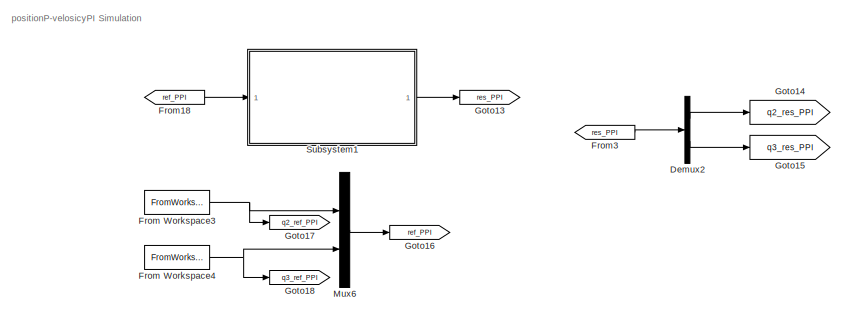
[diagram: root canvas - part 1/4, top left region]
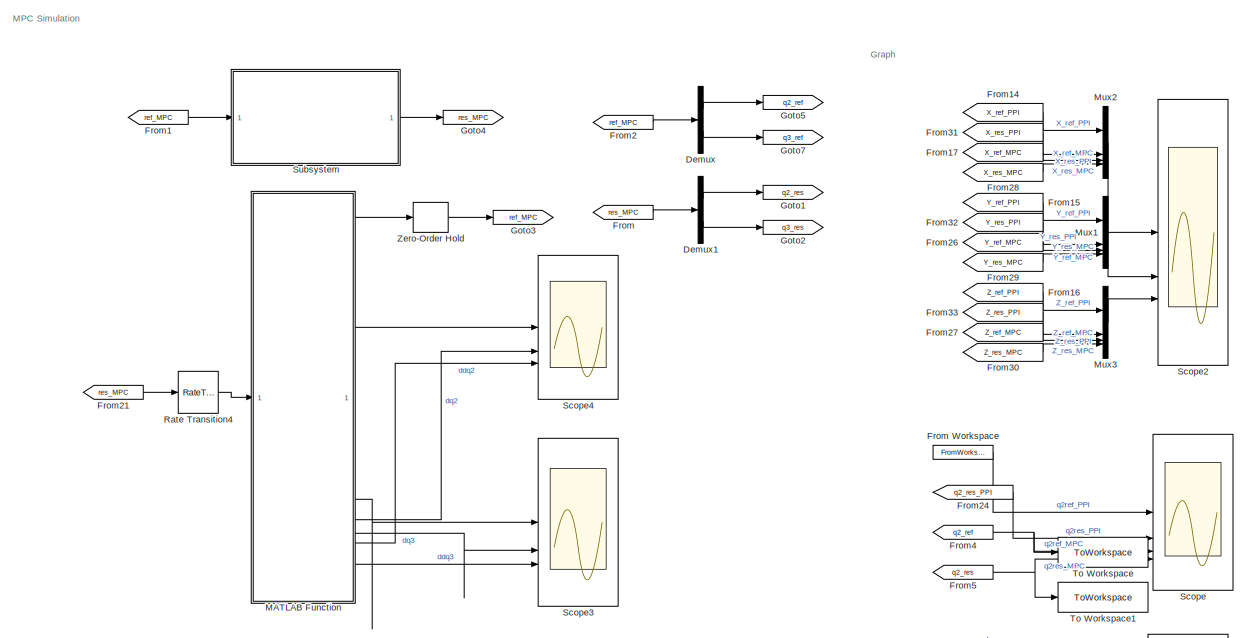
[diagram: root canvas - part 2/4, top right region]
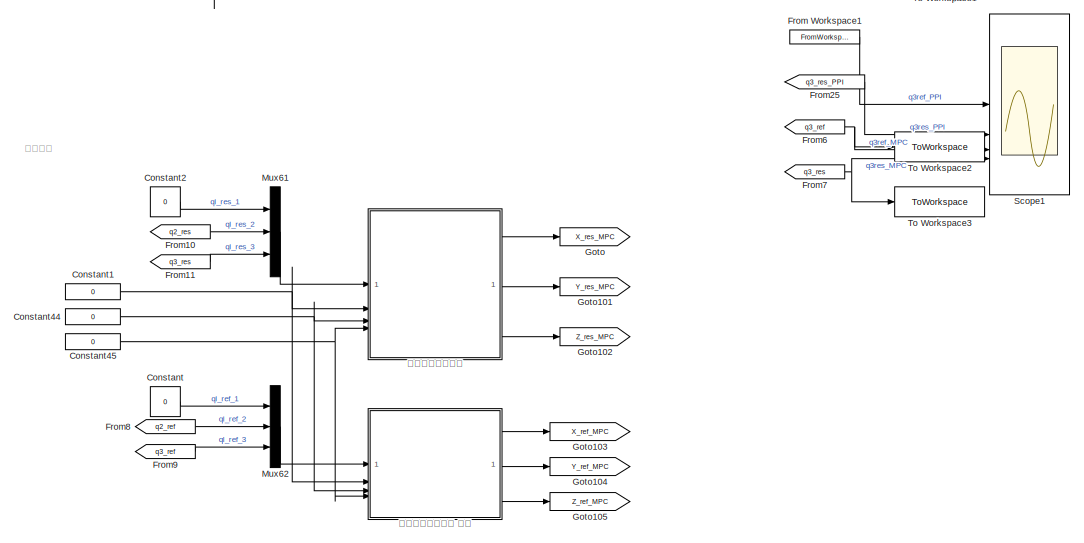
[diagram: root canvas - part 3/4, bottom right region]
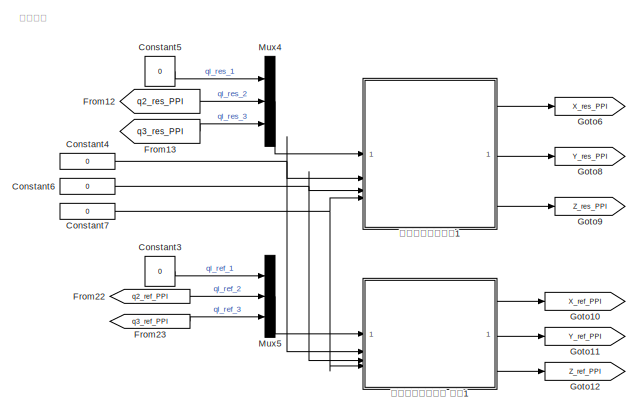
[diagram: root canvas - part 4/4, bottom left region]
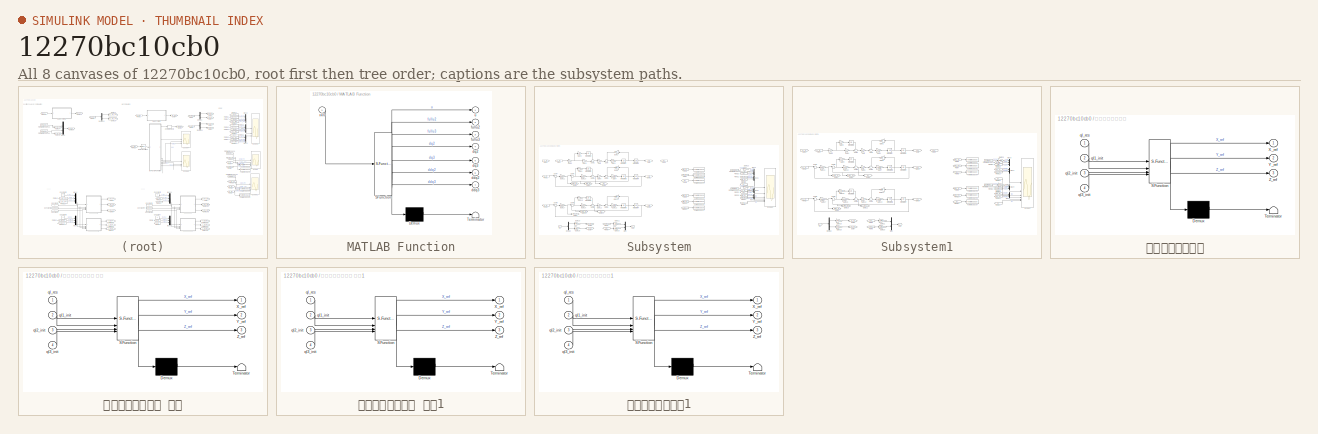
[diagram: thumbnail index - all 8 canvases of the model, root first then tree order]
MODEL slx_12270bc10cb0
KIND model
CONFIG AbsTol = auto
CONFIG EnableMultiTasking = off
CONFIG FixedStep = Ts_plant
CONFIG MaxStep = auto
CONFIG MinStep = auto
CONFIG RelTol = 1e-3
CONFIG SampleTimeConstraint = Unconstrained
CONFIG SolverName = ode8
CONFIG StartTime = 0.0
CONFIG StopTime = 15
BLOCK [Constant] Constant
  Value = 0
BLOCK [Constant] Constant1
  Value = 0
BLOCK [Constant] Constant2
  Value = 0
BLOCK [Constant] Constant3
  Value = 0
BLOCK [Constant] Constant4
  Value = 0
BLOCK [Constant] Constant44
  Value = 0
BLOCK [Constant] Constant45
  Value = 0
BLOCK [Constant] Constant5
  Value = 0
BLOCK [Constant] Constant6
  Value = 0
BLOCK [Constant] Constant7
  Value = 0
BLOCK [Demux] Demux
  Outputs = 2
BLOCK [Demux] Demux1
  Outputs = 2
BLOCK [Demux] Demux2
  Outputs = 2
BLOCK [From] From
  GotoTag = res_MPC
BLOCK [FromWorkspace] From Workspace
  VariableName = pos_ref2_tt
BLOCK [FromWorkspace] From Workspace1
  VariableName = pos_ref3_tt
BLOCK [FromWorkspace] From Workspace3
  VariableName = pos_ref2_tt
BLOCK [FromWorkspace] From Workspace4
  VariableName = pos_ref3_tt
BLOCK [From] From1
  GotoTag = ref_MPC
BLOCK [From] From10
  GotoTag = q2_res
BLOCK [From] From11
  GotoTag = q3_res
  NameLocation = left
BLOCK [From] From12
  GotoTag = q2_res_PPI
BLOCK [From] From13
  GotoTag = q3_res_PPI
BLOCK [From] From14
  GotoTag = X_ref_PPI
BLOCK [From] From15
  GotoTag = Y_ref_PPI
BLOCK [From] From16
  GotoTag = Z_ref_PPI
BLOCK [From] From17
  GotoTag = X_ref_MPC
BLOCK [From] From18
  GotoTag = ref_PPI
BLOCK [From] From2
  GotoTag = ref_MPC
BLOCK [From] From21
  GotoTag = res_MPC
BLOCK [From] From22
  GotoTag = q2_ref_PPI
BLOCK [From] From23
  GotoTag = q3_ref_PPI
BLOCK [From] From24
  GotoTag = q2_res_PPI
BLOCK [From] From25
  GotoTag = q3_res_PPI
BLOCK [From] From26
  GotoTag = Y_ref_MPC
BLOCK [From] From27
  GotoTag = Z_ref_MPC
BLOCK [From] From28
  GotoTag = X_res_MPC
BLOCK [From] From29
  GotoTag = Y_res_MPC
BLOCK [From] From3
  GotoTag = res_PPI
BLOCK [From] From30
  GotoTag = Z_res_MPC
BLOCK [From] From31
  GotoTag = X_res_PPI
BLOCK [From] From32
  GotoTag = Y_res_PPI
BLOCK [From] From33
  GotoTag = Z_res_PPI
BLOCK [From] From4
  GotoTag = q2_ref
BLOCK [From] From5
  GotoTag = q2_res
BLOCK [From] From6
  GotoTag = q3_ref
BLOCK [From] From7
  GotoTag = q3_res
BLOCK [From] From8
  GotoTag = q2_ref
BLOCK [From] From9
  GotoTag = q3_ref
BLOCK [Goto] Goto
  GotoTag = X_res_MPC
BLOCK [Goto] Goto1
  GotoTag = q2_res
BLOCK [Goto] Goto10
  GotoTag = X_ref_PPI
BLOCK [Goto] Goto101
  GotoTag = Y_res_MPC
BLOCK [Goto] Goto102
  GotoTag = Z_res_MPC
BLOCK [Goto] Goto103
  GotoTag = X_ref_MPC
BLOCK [Goto] Goto104
  GotoTag = Y_ref_MPC
BLOCK [Goto] Goto105
  GotoTag = Z_ref_MPC
BLOCK [Goto] Goto11
  GotoTag = Y_ref_PPI
BLOCK [Goto] Goto12
  GotoTag = Z_ref_PPI
BLOCK [Goto] Goto13
  GotoTag = res_PPI
BLOCK [Goto] Goto14
  GotoTag = q2_res_PPI
BLOCK [Goto] Goto15
  GotoTag = q3_res_PPI
BLOCK [Goto] Goto16
  GotoTag = ref_PPI
BLOCK [Goto] Goto17
  GotoTag = q2_ref_PPI
BLOCK [Goto] Goto18
  GotoTag = q3_ref_PPI
BLOCK [Goto] Goto2
  GotoTag = q3_res
BLOCK [Goto] Goto3
  GotoTag = ref_MPC
BLOCK [Goto] Goto4
  GotoTag = res_MPC
BLOCK [Goto] Goto5
  GotoTag = q2_ref
BLOCK [Goto] Goto6
  GotoTag = X_res_PPI
BLOCK [Goto] Goto7
  GotoTag = q3_ref
BLOCK [Goto] Goto8
  GotoTag = Y_res_PPI
BLOCK [Goto] Goto9
  GotoTag = Z_res_PPI
BLOCK [SubSystem] MATLAB Function
  ErrorFcn = Stateflow.Translate.translate
  LibrarySourceBlock = simulink/User-Defined\nFunctions/MATLAB Function
  PermitHierarchicalResolution = ExplicitOnly
  SFBlockType = MATLAB Function
  TreatAsAtomicUnit = on
BLOCK [Demux] MATLAB Function/ Demux 
  Outputs = 1
BLOCK [S-Function] MATLAB Function/ SFunction 
  EnableBusSupport = on
  FunctionName = sf_sfun
  Parameters = D,DU_MAX,DU_MIN,L,M,P,Q,Sa,Sv,Ts_MPC,U_MAX,U_MIN,W_A,W_DU,W_E,long_cmd,n,pos_ref2,pos_ref3
  PortCounts = [1 8]
  SFcnIsStateOwnerBlock = off
  SFunctionDeploymentMode = off
  Tag = Stateflow S-Function 2
BLOCK [Terminator] MATLAB Function/ Terminator 
BLOCK [Outport] MATLAB Function/ddq2
  Port = 6
BLOCK [Outport] MATLAB Function/ddq3
  Port = 7
BLOCK [Outport] MATLAB Function/dq2
  Port = 4
BLOCK [Outport] MATLAB Function/dq3
  Port = 5
BLOCK [Outport] MATLAB Function/fullu2
  Port = 2
BLOCK [Outport] MATLAB Function/fullu3
  Port = 3
BLOCK [Outport] MATLAB Function/u
BLOCK [Inport] MATLAB Function/xk0
BLOCK [Mux] Mux1
  DisplayOption = bar
BLOCK [Mux] Mux2
  DisplayOption = bar
BLOCK [Mux] Mux3
  DisplayOption = bar
BLOCK [Mux] Mux4
  DisplayOption = bar
  Inputs = 3
BLOCK [Mux] Mux5
  DisplayOption = bar
  Inputs = 3
BLOCK [Mux] Mux6
  DisplayOption = bar
  Inputs = 2
BLOCK [Mux] Mux61
  DisplayOption = bar
  Inputs = 3
BLOCK [Mux] Mux62
  DisplayOption = bar
  Inputs = 3
BLOCK [RateTransition] Rate Transition4
  OutPortSampleTime = Ts_MPC
BLOCK [Scope] Scope
  Floating = off
  NumInputPorts = 4
  ScopeSpecificationString = Simulink.scopes.TimeScopeBlockCfg('CurrentConfiguration', extmgr.ConfigurationSet(extmgr.Configuration('Core','General UI',true,'DisplayFullSourceName',true),extmgr.Configuration('Core','Source UI',true),extmgr.Configuration('Sources','WiredSimulink',true,'DataLogging',true,'DataLoggingVariableName','Scope_ql2','DataLoggingSaveFormat','StructureWithTime'),extmgr.Configuration('Visuals','Time Domai...<+1769ch>
BLOCK [Scope] Scope1
  Floating = off
  NumInputPorts = 4
  ScopeSpecificationString = Simulink.scopes.TimeScopeBlockCfg('CurrentConfiguration', extmgr.ConfigurationSet(extmgr.Configuration('Core','General UI',true,'DisplayFullSourceName',true),extmgr.Configuration('Core','Source UI',true),extmgr.Configuration('Sources','WiredSimulink',true,'DataLoggingVariableName','Scope_ql3','DataLogging',true,'DataLoggingSaveFormat','StructureWithTime'),extmgr.Configuration('Visuals','Time Domai...<+1795ch>
BLOCK [Scope] Scope2
  Floating = off
  NumInputPorts = 3
  ScopeSpecificationString = Simulink.scopes.TimeScopeBlockCfg('CurrentConfiguration', extmgr.ConfigurationSet(extmgr.Configuration('Core','General UI',true,'DisplayFullSourceName',true),extmgr.Configuration('Core','Source UI',true),extmgr.Configuration('Sources','WiredSimulink',true,'DataLoggingVariableName','Scope_XYZ','DataLogging',true,'DataLoggingSaveFormat','StructureWithTime'),extmgr.Configuration('Visuals','Time Domai...<+4129ch>
BLOCK [Scope] Scope3
  Floating = off
  NumInputPorts = 3
  ScopeSpecificationString = Simulink.scopes.TimeScopeBlockCfg('CurrentConfiguration', extmgr.ConfigurationSet(extmgr.Configuration('Core','General UI',true,'DisplayFullSourceName',true),extmgr.Configuration('Core','Source UI',true),extmgr.Configuration('Sources','WiredSimulink',true,'DataLoggingVariableName','Scope_MPC3','DataLogging',true,'DataLoggingSaveFormat','StructureWithTime'),extmgr.Configuration('Visuals','Time Doma...<+3601ch>
BLOCK [Scope] Scope4
  Floating = off
  NumInputPorts = 3
  ScopeSpecificationString = Simulink.scopes.TimeScopeBlockCfg('CurrentConfiguration', extmgr.ConfigurationSet(extmgr.Configuration('Core','General UI',true,'DisplayFullSourceName',true),extmgr.Configuration('Core','Source UI',true),extmgr.Configuration('Sources','WiredSimulink',true,'DataLoggingVariableName','Scope_MPC2','DataLogging',true,'DataLoggingSaveFormat','StructureWithTime'),extmgr.Configuration('Visuals','Time Doma...<+3992ch>
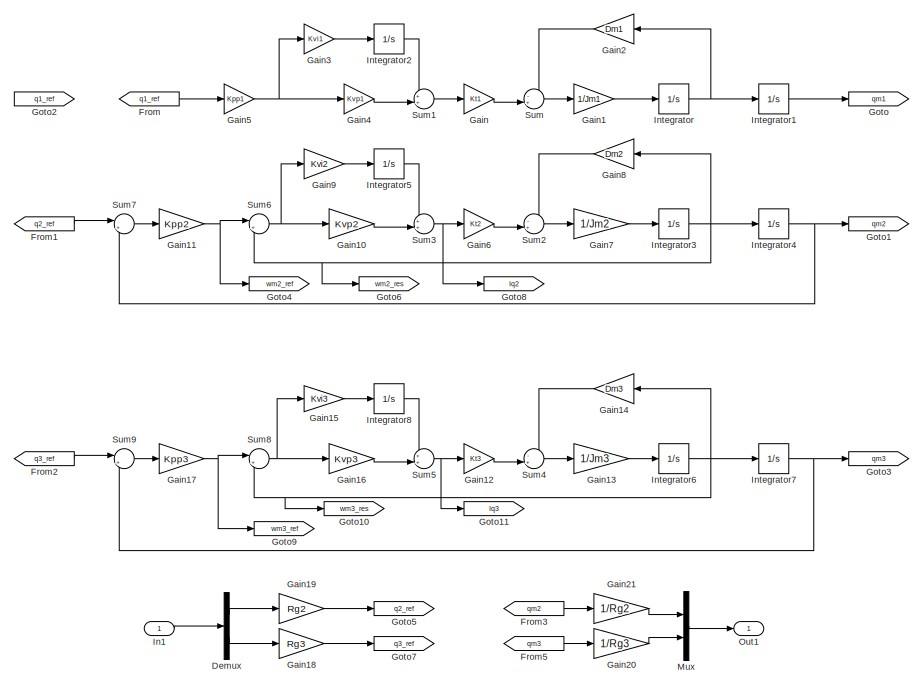
[diagram: Subsystem - part 1/2, left side, full height]
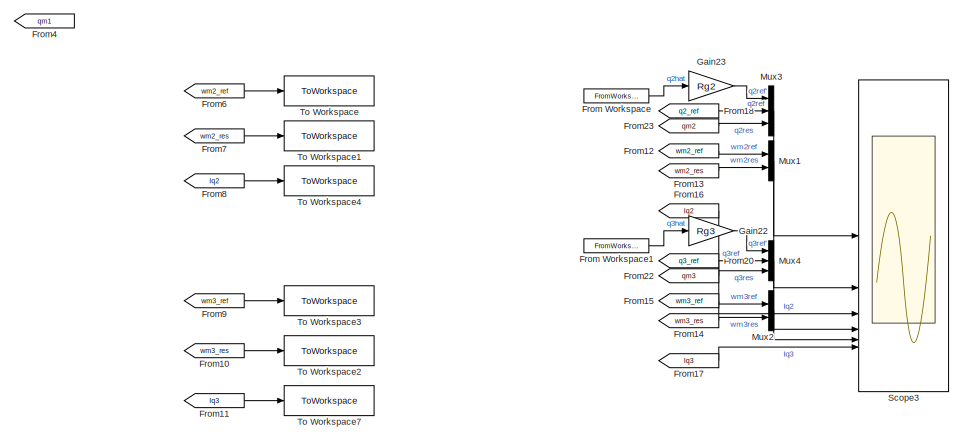
[diagram: Subsystem - part 2/2, middle right region]
BLOCK [SubSystem] Subsystem
BLOCK [Demux] Subsystem/Demux
  Outputs = 2
BLOCK [From] Subsystem/From
  Commented = on
  GotoTag = q1_ref
BLOCK [FromWorkspace] Subsystem/From Workspace
  VariableName = pos_ref2_tt
BLOCK [FromWorkspace] Subsystem/From Workspace1
  VariableName = pos_ref3_tt
BLOCK [From] Subsystem/From1
  GotoTag = q2_ref
BLOCK [From] Subsystem/From10
  GotoTag = wm3_res
BLOCK [From] Subsystem/From11
  GotoTag = Iq3
BLOCK [From] Subsystem/From12
  GotoTag = wm2_ref
BLOCK [From] Subsystem/From13
  GotoTag = wm2_res
BLOCK [From] Subsystem/From14
  GotoTag = wm3_res
BLOCK [From] Subsystem/From15
  GotoTag = wm3_ref
BLOCK [From] Subsystem/From16
  GotoTag = Iq2
BLOCK [From] Subsystem/From17
  GotoTag = Iq3
BLOCK [From] Subsystem/From18
  GotoTag = q2_ref
BLOCK [From] Subsystem/From2
  GotoTag = q3_ref
BLOCK [From] Subsystem/From20
  GotoTag = q3_ref
BLOCK [From] Subsystem/From22
  GotoTag = qm3
BLOCK [From] Subsystem/From23
  GotoTag = qm2
BLOCK [From] Subsystem/From3
  GotoTag = qm2
BLOCK [From] Subsystem/From4
  Commented = on
  GotoTag = qm1
BLOCK [From] Subsystem/From5
  GotoTag = qm3
BLOCK [From] Subsystem/From6
  GotoTag = wm2_ref
BLOCK [From] Subsystem/From7
  GotoTag = wm2_res
BLOCK [From] Subsystem/From8
  GotoTag = Iq2
BLOCK [From] Subsystem/From9
  GotoTag = wm3_ref
BLOCK [Gain] Subsystem/Gain
  Commented = on
  Gain = Kt1
BLOCK [Gain] Subsystem/Gain1
  Commented = on
  Gain = 1/Jm1
BLOCK [Gain] Subsystem/Gain10
  Gain = Kvp2
BLOCK [Gain] Subsystem/Gain11
  Gain = Kpp2
BLOCK [Gain] Subsystem/Gain12
  Gain = Kt3
BLOCK [Gain] Subsystem/Gain13
  Gain = 1/Jm3
BLOCK [Gain] Subsystem/Gain14
  Gain = Dm3
  NameLocation = top
BLOCK [Gain] Subsystem/Gain15
  Gain = Kvi3
BLOCK [Gain] Subsystem/Gain16
  Gain = Kvp3
BLOCK [Gain] Subsystem/Gain17
  Gain = Kpp3
BLOCK [Gain] Subsystem/Gain18
  Gain = Rg3
BLOCK [Gain] Subsystem/Gain19
  Gain = Rg2
BLOCK [Gain] Subsystem/Gain2
  Commented = on
  Gain = Dm1
  NameLocation = top
BLOCK [Gain] Subsystem/Gain20
  Gain = 1/Rg3
BLOCK [Gain] Subsystem/Gain21
  Gain = 1/Rg2
BLOCK [Gain] Subsystem/Gain22
  Gain = Rg3
BLOCK [Gain] Subsystem/Gain23
  Gain = Rg2
BLOCK [Gain] Subsystem/Gain3
  Commented = on
  Gain = Kvi1
BLOCK [Gain] Subsystem/Gain4
  Commented = on
  Gain = Kvp1
BLOCK [Gain] Subsystem/Gain5
  Commented = on
  Gain = Kpp1
BLOCK [Gain] Subsystem/Gain6
  Gain = Kt2
BLOCK [Gain] Subsystem/Gain7
  Gain = 1/Jm2
BLOCK [Gain] Subsystem/Gain8
  Gain = Dm2
  NameLocation = top
BLOCK [Gain] Subsystem/Gain9
  Gain = Kvi2
BLOCK [Goto] Subsystem/Goto
  Commented = on
  GotoTag = qm1
BLOCK [Goto] Subsystem/Goto1
  GotoTag = qm2
BLOCK [Goto] Subsystem/Goto10
  GotoTag = wm3_res
BLOCK [Goto] Subsystem/Goto11
  GotoTag = Iq3
BLOCK [Goto] Subsystem/Goto2
  Commented = on
  GotoTag = q1_ref
BLOCK [Goto] Subsystem/Goto3
  GotoTag = qm3
BLOCK [Goto] Subsystem/Goto4
  GotoTag = wm2_ref
BLOCK [Goto] Subsystem/Goto5
  GotoTag = q2_ref
BLOCK [Goto] Subsystem/Goto6
  GotoTag = wm2_res
BLOCK [Goto] Subsystem/Goto7
  GotoTag = q3_ref
BLOCK [Goto] Subsystem/Goto8
  GotoTag = Iq2
BLOCK [Goto] Subsystem/Goto9
  GotoTag = wm3_ref
BLOCK [Inport] Subsystem/In1
BLOCK [Integrator] Subsystem/Integrator
  Commented = on
BLOCK [Integrator] Subsystem/Integrator1
  Commented = on
BLOCK [Integrator] Subsystem/Integrator2
  Commented = on
BLOCK [Integrator] Subsystem/Integrator3
BLOCK [Integrator] Subsystem/Integrator4
BLOCK [Integrator] Subsystem/Integrator5
BLOCK [Integrator] Subsystem/Integrator6
BLOCK [Integrator] Subsystem/Integrator7
BLOCK [Integrator] Subsystem/Integrator8
BLOCK [Mux] Subsystem/Mux
  DisplayOption = bar
  Inputs = 2
BLOCK [Mux] Subsystem/Mux1
  DisplayOption = bar
  Inputs = 2
BLOCK [Mux] Subsystem/Mux2
  DisplayOption = bar
  Inputs = 2
BLOCK [Mux] Subsystem/Mux3
  DisplayOption = bar
  Inputs = 3
BLOCK [Mux] Subsystem/Mux4
  DisplayOption = bar
  Inputs = 3
BLOCK [Outport] Subsystem/Out1
BLOCK [Scope] Subsystem/Scope3
  Floating = off
  NumInputPorts = 6
  ScopeSpecificationString = Simulink.scopes.TimeScopeBlockCfg('CurrentConfiguration', extmgr.ConfigurationSet(extmgr.Configuration('Core','General UI',true,'DisplayFullSourceName',true),extmgr.Configuration('Core','Source UI',true),extmgr.Configuration('Sources','WiredSimulink',true,'DataLoggingVariableName','Scope_MPCres','DataLogging',true,'DataLoggingSaveFormat','StructureWithTime'),extmgr.Configuration('Visuals','Time Do...<+5676ch>
BLOCK [Sum] Subsystem/Sum
  Commented = on
  Inputs = -+|
BLOCK [Sum] Subsystem/Sum1
  Commented = on
  Inputs = ++|
BLOCK [Sum] Subsystem/Sum2
  Inputs = -+|
BLOCK [Sum] Subsystem/Sum3
  Inputs = ++|
BLOCK [Sum] Subsystem/Sum4
  Inputs = -+|
BLOCK [Sum] Subsystem/Sum5
  Inputs = ++|
BLOCK [Sum] Subsystem/Sum6
  Inputs = |+-
BLOCK [Sum] Subsystem/Sum7
  Inputs = |+-
BLOCK [Sum] Subsystem/Sum8
  Inputs = |+-
BLOCK [Sum] Subsystem/Sum9
  Inputs = |+-
BLOCK [ToWorkspace] Subsystem/To Workspace
  FixptAsFi = on
  MaxDataPoints = inf
  SampleTime = -1
  SaveFormat = Timeseries
  VariableName = w2_ref
BLOCK [ToWorkspace] Subsystem/To Workspace1
  FixptAsFi = on
  MaxDataPoints = inf
  SampleTime = -1
  SaveFormat = Timeseries
  VariableName = w2_res
BLOCK [ToWorkspace] Subsystem/To Workspace2
  FixptAsFi = on
  MaxDataPoints = inf
  SampleTime = -1
  SaveFormat = Timeseries
  VariableName = w3_res
BLOCK [ToWorkspace] Subsystem/To Workspace3
  FixptAsFi = on
  MaxDataPoints = inf
  SampleTime = -1
  SaveFormat = Timeseries
  VariableName = w3_ref
BLOCK [ToWorkspace] Subsystem/To Workspace4
  FixptAsFi = on
  MaxDataPoints = inf
  SampleTime = -1
  SaveFormat = Timeseries
  VariableName = Iq2
BLOCK [ToWorkspace] Subsystem/To Workspace7
  FixptAsFi = on
  MaxDataPoints = inf
  SampleTime = -1
  SaveFormat = Timeseries
  VariableName = Iq3
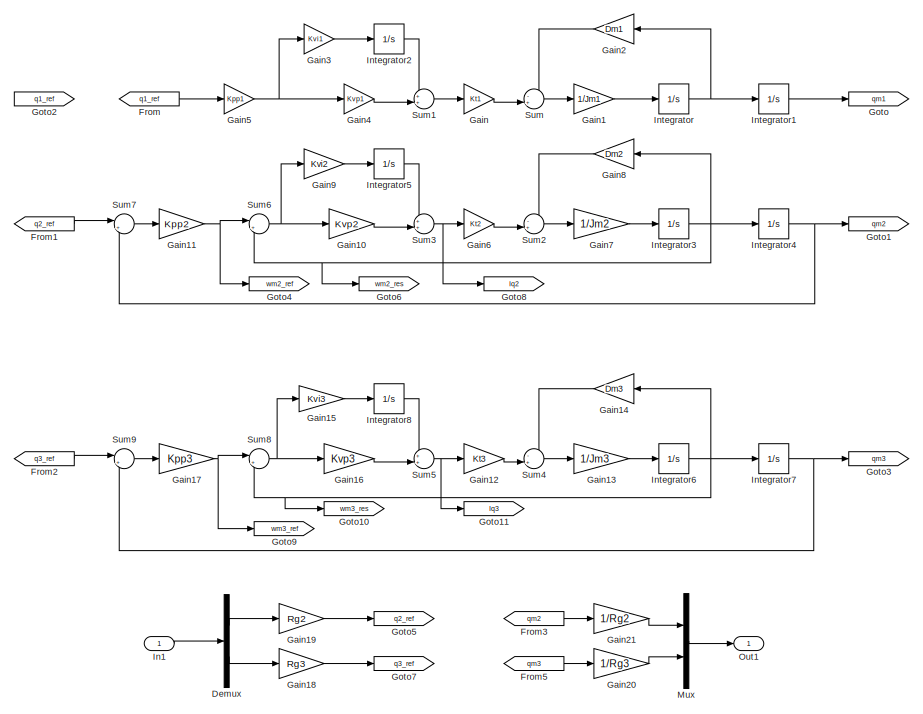
[diagram: Subsystem1 - part 1/2, left side, full height]
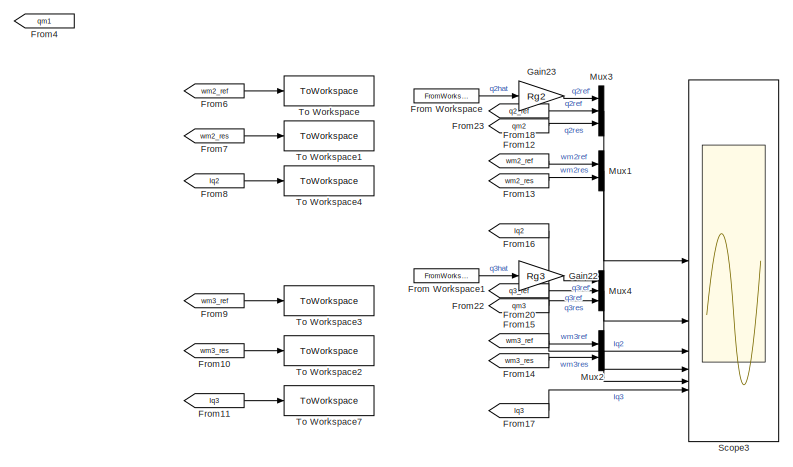
[diagram: Subsystem1 - part 2/2, middle right region]
BLOCK [SubSystem] Subsystem1
BLOCK [Demux] Subsystem1/Demux
  Outputs = 2
BLOCK [From] Subsystem1/From
  Commented = on
  GotoTag = q1_ref
BLOCK [FromWorkspace] Subsystem1/From Workspace
  VariableName = pos_ref2_tt
BLOCK [FromWorkspace] Subsystem1/From Workspace1
  VariableName = pos_ref3_tt
BLOCK [From] Subsystem1/From1
  GotoTag = q2_ref
BLOCK [From] Subsystem1/From10
  Commented = on
  GotoTag = wm3_res
BLOCK [From] Subsystem1/From11
  Commented = on
  GotoTag = Iq3
BLOCK [From] Subsystem1/From12
  GotoTag = wm2_ref
BLOCK [From] Subsystem1/From13
  GotoTag = wm2_res
BLOCK [From] Subsystem1/From14
  GotoTag = wm3_res
BLOCK [From] Subsystem1/From15
  GotoTag = wm3_ref
BLOCK [From] Subsystem1/From16
  GotoTag = Iq2
BLOCK [From] Subsystem1/From17
  GotoTag = Iq3
BLOCK [From] Subsystem1/From18
  GotoTag = q2_ref
BLOCK [From] Subsystem1/From2
  GotoTag = q3_ref
BLOCK [From] Subsystem1/From20
  GotoTag = q3_ref
BLOCK [From] Subsystem1/From22
  GotoTag = qm3
BLOCK [From] Subsystem1/From23
  GotoTag = qm2
BLOCK [From] Subsystem1/From3
  GotoTag = qm2
BLOCK [From] Subsystem1/From4
  Commented = on
  GotoTag = qm1
BLOCK [From] Subsystem1/From5
  GotoTag = qm3
BLOCK [From] Subsystem1/From6
  Commented = on
  GotoTag = wm2_ref
BLOCK [From] Subsystem1/From7
  Commented = on
  GotoTag = wm2_res
BLOCK [From] Subsystem1/From8
  Commented = on
  GotoTag = Iq2
BLOCK [From] Subsystem1/From9
  Commented = on
  GotoTag = wm3_ref
BLOCK [Gain] Subsystem1/Gain
  Commented = on
  Gain = Kt1
BLOCK [Gain] Subsystem1/Gain1
  Commented = on
  Gain = 1/Jm1
BLOCK [Gain] Subsystem1/Gain10
  Gain = Kvp2
BLOCK [Gain] Subsystem1/Gain11
  Gain = Kpp2
BLOCK [Gain] Subsystem1/Gain12
  Gain = Kt3
BLOCK [Gain] Subsystem1/Gain13
  Gain = 1/Jm3
BLOCK [Gain] Subsystem1/Gain14
  Gain = Dm3
  NameLocation = top
BLOCK [Gain] Subsystem1/Gain15
  Gain = Kvi3
BLOCK [Gain] Subsystem1/Gain16
  Gain = Kvp3
BLOCK [Gain] Subsystem1/Gain17
  Gain = Kpp3
BLOCK [Gain] Subsystem1/Gain18
  Gain = Rg3
BLOCK [Gain] Subsystem1/Gain19
  Gain = Rg2
BLOCK [Gain] Subsystem1/Gain2
  Commented = on
  Gain = Dm1
  NameLocation = top
BLOCK [Gain] Subsystem1/Gain20
  Gain = 1/Rg3
BLOCK [Gain] Subsystem1/Gain21
  Gain = 1/Rg2
BLOCK [Gain] Subsystem1/Gain22
  Gain = Rg3
BLOCK [Gain] Subsystem1/Gain23
  Gain = Rg2
BLOCK [Gain] Subsystem1/Gain3
  Commented = on
  Gain = Kvi1
BLOCK [Gain] Subsystem1/Gain4
  Commented = on
  Gain = Kvp1
BLOCK [Gain] Subsystem1/Gain5
  Commented = on
  Gain = Kpp1
BLOCK [Gain] Subsystem1/Gain6
  Gain = Kt2
BLOCK [Gain] Subsystem1/Gain7
  Gain = 1/Jm2
BLOCK [Gain] Subsystem1/Gain8
  Gain = Dm2
  NameLocation = top
BLOCK [Gain] Subsystem1/Gain9
  Gain = Kvi2
BLOCK [Goto] Subsystem1/Goto
  Commented = on
  GotoTag = qm1
BLOCK [Goto] Subsystem1/Goto1
  GotoTag = qm2
BLOCK [Goto] Subsystem1/Goto10
  GotoTag = wm3_res
BLOCK [Goto] Subsystem1/Goto11
  GotoTag = Iq3
BLOCK [Goto] Subsystem1/Goto2
  Commented = on
  GotoTag = q1_ref
BLOCK [Goto] Subsystem1/Goto3
  GotoTag = qm3
BLOCK [Goto] Subsystem1/Goto4
  GotoTag = wm2_ref
BLOCK [Goto] Subsystem1/Goto5
  GotoTag = q2_ref
BLOCK [Goto] Subsystem1/Goto6
  GotoTag = wm2_res
BLOCK [Goto] Subsystem1/Goto7
  GotoTag = q3_ref
BLOCK [Goto] Subsystem1/Goto8
  GotoTag = Iq2
BLOCK [Goto] Subsystem1/Goto9
  GotoTag = wm3_ref
BLOCK [Inport] Subsystem1/In1
BLOCK [Integrator] Subsystem1/Integrator
  Commented = on
BLOCK [Integrator] Subsystem1/Integrator1
  Commented = on
BLOCK [Integrator] Subsystem1/Integrator2
  Commented = on
BLOCK [Integrator] Subsystem1/Integrator3
BLOCK [Integrator] Subsystem1/Integrator4
BLOCK [Integrator] Subsystem1/Integrator5
BLOCK [Integrator] Subsystem1/Integrator6
BLOCK [Integrator] Subsystem1/Integrator7
BLOCK [Integrator] Subsystem1/Integrator8
BLOCK [Mux] Subsystem1/Mux
  DisplayOption = bar
  Inputs = 2
BLOCK [Mux] Subsystem1/Mux1
  DisplayOption = bar
  Inputs = 2
BLOCK [Mux] Subsystem1/Mux2
  DisplayOption = bar
  Inputs = 2
BLOCK [Mux] Subsystem1/Mux3
  DisplayOption = bar
  Inputs = 3
BLOCK [Mux] Subsystem1/Mux4
  DisplayOption = bar
  Inputs = 3
BLOCK [Outport] Subsystem1/Out1
BLOCK [Scope] Subsystem1/Scope3
  Floating = off
  NumInputPorts = 6
  ScopeSpecificationString = Simulink.scopes.TimeScopeBlockCfg('CurrentConfiguration', extmgr.ConfigurationSet(extmgr.Configuration('Core','General UI',true,'DisplayFullSourceName',true),extmgr.Configuration('Core','Source UI',true),extmgr.Configuration('Sources','WiredSimulink',true,'DataLoggingVariableName','Scope_PPIres','DataLogging',true,'DataLoggingSaveFormat','StructureWithTime'),extmgr.Configuration('Visuals','Time Do...<+5674ch>
BLOCK [Sum] Subsystem1/Sum
  Commented = on
  Inputs = -+|
BLOCK [Sum] Subsystem1/Sum1
  Commented = on
  Inputs = ++|
BLOCK [Sum] Subsystem1/Sum2
  Inputs = -+|
BLOCK [Sum] Subsystem1/Sum3
  Inputs = ++|
BLOCK [Sum] Subsystem1/Sum4
  Inputs = -+|
BLOCK [Sum] Subsystem1/Sum5
  Inputs = ++|
BLOCK [Sum] Subsystem1/Sum6
  Inputs = |+-
BLOCK [Sum] Subsystem1/Sum7
  Inputs = |+-
BLOCK [Sum] Subsystem1/Sum8
  Inputs = |+-
BLOCK [Sum] Subsystem1/Sum9
  Inputs = |+-
BLOCK [ToWorkspace] Subsystem1/To Workspace
  Commented = on
  FixptAsFi = on
  MaxDataPoints = inf
  SampleTime = -1
  SaveFormat = Timeseries
  VariableName = w2_ref
BLOCK [ToWorkspace] Subsystem1/To Workspace1
  Commented = on
  FixptAsFi = on
  MaxDataPoints = inf
  SampleTime = -1
  SaveFormat = Timeseries
  VariableName = w2_res
BLOCK [ToWorkspace] Subsystem1/To Workspace2
  Commented = on
  FixptAsFi = on
  MaxDataPoints = inf
  SampleTime = -1
  SaveFormat = Timeseries
  VariableName = w3_res
BLOCK [ToWorkspace] Subsystem1/To Workspace3
  Commented = on
  FixptAsFi = on
  MaxDataPoints = inf
  SampleTime = -1
  SaveFormat = Timeseries
  VariableName = w3_ref
BLOCK [ToWorkspace] Subsystem1/To Workspace4
  Commented = on
  FixptAsFi = on
  MaxDataPoints = inf
  SampleTime = -1
  SaveFormat = Timeseries
  VariableName = Iq2
BLOCK [ToWorkspace] Subsystem1/To Workspace7
  Commented = on
  FixptAsFi = on
  MaxDataPoints = inf
  SampleTime = -1
  SaveFormat = Timeseries
  VariableName = Iq3
BLOCK [ToWorkspace] To Workspace
  FixptAsFi = on
  MaxDataPoints = inf
  SampleTime = -1
  SaveFormat = Timeseries
  VariableName = q2_ref
BLOCK [ToWorkspace] To Workspace1
  FixptAsFi = on
  MaxDataPoints = inf
  SampleTime = -1
  SaveFormat = Timeseries
  VariableName = q2_res
BLOCK [ToWorkspace] To Workspace2
  FixptAsFi = on
  MaxDataPoints = inf
  SampleTime = -1
  SaveFormat = Timeseries
  VariableName = q3_ref
BLOCK [ToWorkspace] To Workspace3
  FixptAsFi = on
  MaxDataPoints = inf
  SampleTime = -1
  SaveFormat = Timeseries
  VariableName = q3_res
BLOCK [ZeroOrderHold] Zero-Order Hold
  SampleTime = Ts_control
BLOCK [SubSystem] ロボット順運動学
  ErrorFcn = Stateflow.Translate.translate
  PermitHierarchicalResolution = ExplicitOnly
  SFBlockType = MATLAB Function
  SystemSampleTime = Ts
  TreatAsAtomicUnit = on
BLOCK [SubSystem] ロボット順運動学 理想
  ErrorFcn = Stateflow.Translate.translate
  PermitHierarchicalResolution = ExplicitOnly
  SFBlockType = MATLAB Function
  SystemSampleTime = Ts
  TreatAsAtomicUnit = on
BLOCK [Demux] ロボット順運動学 理想/ Demux 
  Outputs = 1
BLOCK [S-Function] ロボット順運動学 理想/ SFunction 
  EnableBusSupport = on
  FunctionName = sf_sfun
  PortCounts = [4 4]
  SFcnIsStateOwnerBlock = off
  SFunctionDeploymentMode = off
  Tag = Stateflow S-Function 18
BLOCK [Terminator] ロボット順運動学 理想/ Terminator 
BLOCK [Outport] ロボット順運動学 理想/X_ref
BLOCK [Outport] ロボット順運動学 理想/Y_ref
  Port = 2
BLOCK [Outport] ロボット順運動学 理想/Z_ref
  Port = 3
BLOCK [Inport] ロボット順運動学 理想/ql1_init
  Port = 2
BLOCK [Inport] ロボット順運動学 理想/ql2_init
  Port = 3
BLOCK [Inport] ロボット順運動学 理想/ql3_init
  Port = 4
BLOCK [Inport] ロボット順運動学 理想/ql_res
BLOCK [SubSystem] ロボット順運動学 理想1
  ErrorFcn = Stateflow.Translate.translate
  PermitHierarchicalResolution = ExplicitOnly
  SFBlockType = MATLAB Function
  SystemSampleTime = Ts
  TreatAsAtomicUnit = on
BLOCK [Demux] ロボット順運動学 理想1/ Demux 
  Outputs = 1
BLOCK [S-Function] ロボット順運動学 理想1/ SFunction 
  EnableBusSupport = on
  FunctionName = sf_sfun
  PortCounts = [4 4]
  SFcnIsStateOwnerBlock = off
  SFunctionDeploymentMode = off
  Tag = Stateflow S-Function 1
BLOCK [Terminator] ロボット順運動学 理想1/ Terminator 
BLOCK [Outport] ロボット順運動学 理想1/X_ref
BLOCK [Outport] ロボット順運動学 理想1/Y_ref
  Port = 2
BLOCK [Outport] ロボット順運動学 理想1/Z_ref
  Port = 3
BLOCK [Inport] ロボット順運動学 理想1/ql1_init
  Port = 2
BLOCK [Inport] ロボット順運動学 理想1/ql2_init
  Port = 3
BLOCK [Inport] ロボット順運動学 理想1/ql3_init
  Port = 4
BLOCK [Inport] ロボット順運動学 理想1/ql_res
BLOCK [Demux] ロボット順運動学/ Demux 
  Outputs = 1
BLOCK [S-Function] ロボット順運動学/ SFunction 
  EnableBusSupport = on
  FunctionName = sf_sfun
  PortCounts = [4 4]
  SFcnIsStateOwnerBlock = off
  SFunctionDeploymentMode = off
  Tag = Stateflow S-Function 17
BLOCK [Terminator] ロボット順運動学/ Terminator 
BLOCK [Outport] ロボット順運動学/X_ref
BLOCK [Outport] ロボット順運動学/Y_ref
  Port = 2
BLOCK [Outport] ロボット順運動学/Z_ref
  Port = 3
BLOCK [Inport] ロボット順運動学/ql1_init
  Port = 2
BLOCK [Inport] ロボット順運動学/ql2_init
  Port = 3
BLOCK [Inport] ロボット順運動学/ql3_init
  Port = 4
BLOCK [Inport] ロボット順運動学/ql_res
BLOCK [SubSystem] ロボット順運動学1
  ErrorFcn = Stateflow.Translate.translate
  PermitHierarchicalResolution = ExplicitOnly
  SFBlockType = MATLAB Function
  SystemSampleTime = Ts
  TreatAsAtomicUnit = on
BLOCK [Demux] ロボット順運動学1/ Demux 
  Outputs = 1
BLOCK [S-Function] ロボット順運動学1/ SFunction 
  EnableBusSupport = on
  FunctionName = sf_sfun
  PortCounts = [4 4]
  SFcnIsStateOwnerBlock = off
  SFunctionDeploymentMode = off
  Tag = Stateflow S-Function 3
BLOCK [Terminator] ロボット順運動学1/ Terminator 
BLOCK [Outport] ロボット順運動学1/X_ref
BLOCK [Outport] ロボット順運動学1/Y_ref
  Port = 2
BLOCK [Outport] ロボット順運動学1/Z_ref
  Port = 3
BLOCK [Inport] ロボット順運動学1/ql1_init
  Port = 2
BLOCK [Inport] ロボット順運動学1/ql2_init
  Port = 3
BLOCK [Inport] ロボット順運動学1/ql3_init
  Port = 4
BLOCK [Inport] ロボット順運動学1/ql_res
ANNOTATION (root): Graph
ANNOTATION (root): MPC Simulation
ANNOTATION (root): positionP-velosicyPI Simulation
ANNOTATION (root): 順運動学
NET Constant1:1 -> ロボット順運動学 理想:2, ロボット順運動学:2
LINE Constant2:1 -> Mux61:1
LINE Constant3:1 -> Mux5:1
NET Constant44:1 -> ロボット順運動学 理想:3, ロボット順運動学:3
NET Constant45:1 -> ロボット順運動学 理想:4, ロボット順運動学:4
NET Constant4:1 -> ロボット順運動学 理想1:2, ロボット順運動学1:2
LINE Constant5:1 -> Mux4:1
NET Constant6:1 -> ロボット順運動学 理想1:3, ロボット順運動学1:3
NET Constant7:1 -> ロボット順運動学 理想1:4, ロボット順運動学1:4
LINE Constant:1 -> Mux62:1
LINE Demux1:1 -> Goto1:1
LINE Demux1:2 -> Goto2:1
LINE Demux2:1 -> Goto14:1
LINE Demux2:2 -> Goto15:1
LINE Demux:1 -> Goto5:1
LINE Demux:2 -> Goto7:1
LINE From Workspace1:1 -> Scope1:1
NET From Workspace3:1 -> Goto17:1, Mux6:1
NET From Workspace4:1 -> Goto18:1, Mux6:2
LINE From Workspace:1 -> Scope:1
LINE From10:1 -> Mux61:2
LINE From11:1 -> Mux61:3
LINE From12:1 -> Mux4:2
LINE From13:1 -> Mux4:3
LINE From14:1 -> Mux2:1
LINE From15:1 -> Mux1:1
LINE From16:1 -> Mux3:1
LINE From17:1 -> Mux2:3
LINE From18:1 -> Subsystem1:1
LINE From1:1 -> Subsystem:1
LINE From21:1 -> Rate Transition4:1
LINE From22:1 -> Mux5:2
LINE From23:1 -> Mux5:3
LINE From24:1 -> Scope:2
LINE From25:1 -> Scope1:2
LINE From26:1 -> Mux1:3
LINE From27:1 -> Mux3:3
LINE From28:1 -> Mux2:4
LINE From29:1 -> Mux1:4
LINE From2:1 -> Demux:1
LINE From30:1 -> Mux3:4
LINE From31:1 -> Mux2:2
LINE From32:1 -> Mux1:2
LINE From33:1 -> Mux3:2
LINE From3:1 -> Demux2:1
NET From4:1 -> Scope:3, To Workspace:1
NET From5:1 -> Scope:4, To Workspace1:1
NET From6:1 -> Scope1:3, To Workspace2:1
NET From7:1 -> Scope1:4, To Workspace3:1
LINE From8:1 -> Mux62:2
LINE From9:1 -> Mux62:3
LINE From:1 -> Demux1:1
LINE MATLAB Function:1 -> Zero-Order Hold:1
LINE MATLAB Function:2 -> Scope4:1
LINE MATLAB Function:3 -> Scope3:1
LINE MATLAB Function:4 -> Scope4:2
LINE MATLAB Function:5 -> Scope3:2
LINE MATLAB Function:6 -> Scope4:3
LINE MATLAB Function:7 -> Scope3:3
LINE Mux1:1 -> Scope2:2
LINE Mux2:1 -> Scope2:1
LINE Mux3:1 -> Scope2:3
LINE Mux4:1 -> ロボット順運動学1:1
LINE Mux5:1 -> ロボット順運動学 理想1:1
LINE Mux61:1 -> ロボット順運動学:1
LINE Mux62:1 -> ロボット順運動学 理想:1
LINE Mux6:1 -> Goto16:1
LINE Rate Transition4:1 -> MATLAB Function:1
LINE Subsystem/Demux:1 -> Subsystem/Gain19:1
LINE Subsystem/Demux:2 -> Subsystem/Gain18:1
LINE Subsystem/From Workspace1:1 -> Subsystem/Gain22:1
LINE Subsystem/From Workspace:1 -> Subsystem/Gain23:1
LINE Subsystem/From10:1 -> Subsystem/To Workspace2:1
LINE Subsystem/From11:1 -> Subsystem/To Workspace7:1
LINE Subsystem/From12:1 -> Subsystem/Mux1:1
LINE Subsystem/From13:1 -> Subsystem/Mux1:2
LINE Subsystem/From14:1 -> Subsystem/Mux2:2
LINE Subsystem/From15:1 -> Subsystem/Mux2:1
LINE Subsystem/From16:1 -> Subsystem/Scope3:3
LINE Subsystem/From17:1 -> Subsystem/Scope3:6
LINE Subsystem/From18:1 -> Subsystem/Mux3:2
LINE Subsystem/From1:1 -> Subsystem/Sum7:1
LINE Subsystem/From20:1 -> Subsystem/Mux4:2
LINE Subsystem/From22:1 -> Subsystem/Mux4:3
LINE Subsystem/From23:1 -> Subsystem/Mux3:3
LINE Subsystem/From2:1 -> Subsystem/Sum9:1
LINE Subsystem/From3:1 -> Subsystem/Gain21:1
LINE Subsystem/From5:1 -> Subsystem/Gain20:1
LINE Subsystem/From6:1 -> Subsystem/To Workspace:1
LINE Subsystem/From7:1 -> Subsystem/To Workspace1:1
LINE Subsystem/From8:1 -> Subsystem/To Workspace4:1
LINE Subsystem/From9:1 -> Subsystem/To Workspace3:1
LINE Subsystem/From:1 -> Subsystem/Gain5:1
LINE Subsystem/Gain10:1 -> Subsystem/Sum3:2
NET Subsystem/Gain11:1 -> Subsystem/Goto4:1, Subsystem/Sum6:1
LINE Subsystem/Gain12:1 -> Subsystem/Sum4:2
LINE Subsystem/Gain13:1 -> Subsystem/Integrator6:1
LINE Subsystem/Gain14:1 -> Subsystem/Sum4:1
LINE Subsystem/Gain15:1 -> Subsystem/Integrator8:1
LINE Subsystem/Gain16:1 -> Subsystem/Sum5:2
NET Subsystem/Gain17:1 -> Subsystem/Goto9:1, Subsystem/Sum8:1
LINE Subsystem/Gain18:1 -> Subsystem/Goto7:1
LINE Subsystem/Gain19:1 -> Subsystem/Goto5:1
LINE Subsystem/Gain1:1 -> Subsystem/Integrator:1
LINE Subsystem/Gain20:1 -> Subsystem/Mux:2
LINE Subsystem/Gain21:1 -> Subsystem/Mux:1
LINE Subsystem/Gain22:1 -> Subsystem/Mux4:1
LINE Subsystem/Gain23:1 -> Subsystem/Mux3:1
LINE Subsystem/Gain2:1 -> Subsystem/Sum:1
LINE Subsystem/Gain3:1 -> Subsystem/Integrator2:1
LINE Subsystem/Gain4:1 -> Subsystem/Sum1:2
NET Subsystem/Gain5:1 -> Subsystem/Gain3:1, Subsystem/Gain4:1
LINE Subsystem/Gain6:1 -> Subsystem/Sum2:2
LINE Subsystem/Gain7:1 -> Subsystem/Integrator3:1
LINE Subsystem/Gain8:1 -> Subsystem/Sum2:1
LINE Subsystem/Gain9:1 -> Subsystem/Integrator5:1
LINE Subsystem/Gain:1 -> Subsystem/Sum:2
LINE Subsystem/In1:1 -> Subsystem/Demux:1
LINE Subsystem/Integrator1:1 -> Subsystem/Goto:1
LINE Subsystem/Integrator2:1 -> Subsystem/Sum1:1
NET Subsystem/Integrator3:1 -> Subsystem/Gain8:1, Subsystem/Goto6:1, Subsystem/Integrator4:1, Subsystem/Sum6:2
NET Subsystem/Integrator4:1 -> Subsystem/Goto1:1, Subsystem/Sum7:2
LINE Subsystem/Integrator5:1 -> Subsystem/Sum3:1
NET Subsystem/Integrator6:1 -> Subsystem/Gain14:1, Subsystem/Goto10:1, Subsystem/Integrator7:1, Subsystem/Sum8:2
NET Subsystem/Integrator7:1 -> Subsystem/Goto3:1, Subsystem/Sum9:2
LINE Subsystem/Integrator8:1 -> Subsystem/Sum5:1
NET Subsystem/Integrator:1 -> Subsystem/Gain2:1, Subsystem/Integrator1:1
LINE Subsystem/Mux1:1 -> Subsystem/Scope3:2
LINE Subsystem/Mux2:1 -> Subsystem/Scope3:5
LINE Subsystem/Mux3:1 -> Subsystem/Scope3:1
LINE Subsystem/Mux4:1 -> Subsystem/Scope3:4
LINE Subsystem/Mux:1 -> Subsystem/Out1:1
LINE Subsystem/Sum1:1 -> Subsystem/Gain:1
LINE Subsystem/Sum2:1 -> Subsystem/Gain7:1
NET Subsystem/Sum3:1 -> Subsystem/Gain6:1, Subsystem/Goto8:1
LINE Subsystem/Sum4:1 -> Subsystem/Gain13:1
NET Subsystem/Sum5:1 -> Subsystem/Gain12:1, Subsystem/Goto11:1
NET Subsystem/Sum6:1 -> Subsystem/Gain10:1, Subsystem/Gain9:1
LINE Subsystem/Sum7:1 -> Subsystem/Gain11:1
NET Subsystem/Sum8:1 -> Subsystem/Gain15:1, Subsystem/Gain16:1
LINE Subsystem/Sum9:1 -> Subsystem/Gain17:1
LINE Subsystem/Sum:1 -> Subsystem/Gain1:1
LINE Subsystem1/Demux:1 -> Subsystem1/Gain19:1
LINE Subsystem1/Demux:2 -> Subsystem1/Gain18:1
LINE Subsystem1/From Workspace1:1 -> Subsystem1/Gain22:1
LINE Subsystem1/From Workspace:1 -> Subsystem1/Gain23:1
LINE Subsystem1/From10:1 -> Subsystem1/To Workspace2:1
LINE Subsystem1/From11:1 -> Subsystem1/To Workspace7:1
LINE Subsystem1/From12:1 -> Subsystem1/Mux1:1
LINE Subsystem1/From13:1 -> Subsystem1/Mux1:2
LINE Subsystem1/From14:1 -> Subsystem1/Mux2:2
LINE Subsystem1/From15:1 -> Subsystem1/Mux2:1
LINE Subsystem1/From16:1 -> Subsystem1/Scope3:3
LINE Subsystem1/From17:1 -> Subsystem1/Scope3:6
LINE Subsystem1/From18:1 -> Subsystem1/Mux3:2
LINE Subsystem1/From1:1 -> Subsystem1/Sum7:1
LINE Subsystem1/From20:1 -> Subsystem1/Mux4:2
LINE Subsystem1/From22:1 -> Subsystem1/Mux4:3
LINE Subsystem1/From23:1 -> Subsystem1/Mux3:3
LINE Subsystem1/From2:1 -> Subsystem1/Sum9:1
LINE Subsystem1/From3:1 -> Subsystem1/Gain21:1
LINE Subsystem1/From5:1 -> Subsystem1/Gain20:1
LINE Subsystem1/From6:1 -> Subsystem1/To Workspace:1
LINE Subsystem1/From7:1 -> Subsystem1/To Workspace1:1
LINE Subsystem1/From8:1 -> Subsystem1/To Workspace4:1
LINE Subsystem1/From9:1 -> Subsystem1/To Workspace3:1
LINE Subsystem1/From:1 -> Subsystem1/Gain5:1
LINE Subsystem1/Gain10:1 -> Subsystem1/Sum3:2
NET Subsystem1/Gain11:1 -> Subsystem1/Goto4:1, Subsystem1/Sum6:1
LINE Subsystem1/Gain12:1 -> Subsystem1/Sum4:2
LINE Subsystem1/Gain13:1 -> Subsystem1/Integrator6:1
LINE Subsystem1/Gain14:1 -> Subsystem1/Sum4:1
LINE Subsystem1/Gain15:1 -> Subsystem1/Integrator8:1
LINE Subsystem1/Gain16:1 -> Subsystem1/Sum5:2
NET Subsystem1/Gain17:1 -> Subsystem1/Goto9:1, Subsystem1/Sum8:1
LINE Subsystem1/Gain18:1 -> Subsystem1/Goto7:1
LINE Subsystem1/Gain19:1 -> Subsystem1/Goto5:1
LINE Subsystem1/Gain1:1 -> Subsystem1/Integrator:1
LINE Subsystem1/Gain20:1 -> Subsystem1/Mux:2
LINE Subsystem1/Gain21:1 -> Subsystem1/Mux:1
LINE Subsystem1/Gain22:1 -> Subsystem1/Mux4:1
LINE Subsystem1/Gain23:1 -> Subsystem1/Mux3:1
LINE Subsystem1/Gain2:1 -> Subsystem1/Sum:1
LINE Subsystem1/Gain3:1 -> Subsystem1/Integrator2:1
LINE Subsystem1/Gain4:1 -> Subsystem1/Sum1:2
NET Subsystem1/Gain5:1 -> Subsystem1/Gain3:1, Subsystem1/Gain4:1
LINE Subsystem1/Gain6:1 -> Subsystem1/Sum2:2
LINE Subsystem1/Gain7:1 -> Subsystem1/Integrator3:1
LINE Subsystem1/Gain8:1 -> Subsystem1/Sum2:1
LINE Subsystem1/Gain9:1 -> Subsystem1/Integrator5:1
LINE Subsystem1/Gain:1 -> Subsystem1/Sum:2
LINE Subsystem1/In1:1 -> Subsystem1/Demux:1
LINE Subsystem1/Integrator1:1 -> Subsystem1/Goto:1
LINE Subsystem1/Integrator2:1 -> Subsystem1/Sum1:1
NET Subsystem1/Integrator3:1 -> Subsystem1/Gain8:1, Subsystem1/Goto6:1, Subsystem1/Integrator4:1, Subsystem1/Sum6:2
NET Subsystem1/Integrator4:1 -> Subsystem1/Goto1:1, Subsystem1/Sum7:2
LINE Subsystem1/Integrator5:1 -> Subsystem1/Sum3:1
NET Subsystem1/Integrator6:1 -> Subsystem1/Gain14:1, Subsystem1/Goto10:1, Subsystem1/Integrator7:1, Subsystem1/Sum8:2
NET Subsystem1/Integrator7:1 -> Subsystem1/Goto3:1, Subsystem1/Sum9:2
LINE Subsystem1/Integrator8:1 -> Subsystem1/Sum5:1
NET Subsystem1/Integrator:1 -> Subsystem1/Gain2:1, Subsystem1/Integrator1:1
LINE Subsystem1/Mux1:1 -> Subsystem1/Scope3:2
LINE Subsystem1/Mux2:1 -> Subsystem1/Scope3:5
LINE Subsystem1/Mux3:1 -> Subsystem1/Scope3:1
LINE Subsystem1/Mux4:1 -> Subsystem1/Scope3:4
LINE Subsystem1/Mux:1 -> Subsystem1/Out1:1
LINE Subsystem1/Sum1:1 -> Subsystem1/Gain:1
LINE Subsystem1/Sum2:1 -> Subsystem1/Gain7:1
NET Subsystem1/Sum3:1 -> Subsystem1/Gain6:1, Subsystem1/Goto8:1
LINE Subsystem1/Sum4:1 -> Subsystem1/Gain13:1
NET Subsystem1/Sum5:1 -> Subsystem1/Gain12:1, Subsystem1/Goto11:1
NET Subsystem1/Sum6:1 -> Subsystem1/Gain10:1, Subsystem1/Gain9:1
LINE Subsystem1/Sum7:1 -> Subsystem1/Gain11:1
NET Subsystem1/Sum8:1 -> Subsystem1/Gain15:1, Subsystem1/Gain16:1
LINE Subsystem1/Sum9:1 -> Subsystem1/Gain17:1
LINE Subsystem1/Sum:1 -> Subsystem1/Gain1:1
LINE Subsystem1:1 -> Goto13:1
LINE Subsystem:1 -> Goto4:1
LINE Zero-Order Hold:1 -> Goto3:1
LINE ロボット順運動学 理想1:1 -> Goto10:1
LINE ロボット順運動学 理想1:2 -> Goto11:1
LINE ロボット順運動学 理想1:3 -> Goto12:1
LINE ロボット順運動学 理想:1 -> Goto103:1
LINE ロボット順運動学 理想:2 -> Goto104:1
LINE ロボット順運動学 理想:3 -> Goto105:1
LINE ロボット順運動学1:1 -> Goto6:1
LINE ロボット順運動学1:2 -> Goto8:1
LINE ロボット順運動学1:3 -> Goto9:1
LINE ロボット順運動学:1 -> Goto:1
LINE ロボット順運動学:2 -> Goto101:1
LINE ロボット順運動学:3 -> Goto102:1
note: NET lines group one-source signal fan-out (src -> all destinations, sorted); 1:1 wires keep LINE
CHART ロボット順運動学1 states=1 transitions=1
  STATE_LABEL 'eML_blk_kernel()'
  STATE_LABEL 'SCRIPT:\nfunction [X_ref, Y_ref, Z_ref] = FowardKinematiics(ql_res, ql1_init, ql2_init, ql3_init)\n%% 軸角度\nq1 = ql1_init + ql_res(1);\nq2 = ql2_init + ql_res(2);\nq3 = ql3_init + ql_res(3);\nq4 = 0;\nq5 = 0;\nq6 = 0;\n    \n%% パラメータ\n% 各関節角度(rad)\ntheta1 = q1;\ntheta2 = q2;\ntheta3 = q3;\ntheta4 = q4;\ntheta5 = q5;\ntheta6 = q6;\n\n%\u3000各リンクの長さ\nLac = 0.2685;\nLb  = 0.16;\nLd  = 0.0880;\nLe  = 0.56;\nLf  = 0.088;\nLg  = 0.13...<+2529ch>'
CHART ロボット順運動学 states=1 transitions=1
  STATE_LABEL 'eML_blk_kernel()'
  STATE_LABEL 'SCRIPT:\nfunction [X_ref, Y_ref, Z_ref] = FowardKinematiics(ql_res, ql1_init, ql2_init, ql3_init)\n%% 軸角度\nq1 = ql1_init + ql_res(1);\nq2 = ql2_init + ql_res(2);\nq3 = ql3_init + ql_res(3);\nq4 = 0;\nq5 = 0;\nq6 = 0;\n    \n%% パラメータ\n% 各関節角度(rad)\ntheta1 = q1;\ntheta2 = q2;\ntheta3 = q3;\ntheta4 = q4;\ntheta5 = q5;\ntheta6 = q6;\n\n%\u3000各リンクの長さ\nLac = 0.2685;\nLb  = 0.16;\nLd  = 0.0880;\nLe  = 0.56;\nLf  = 0.088;\nLg  = 0.13...<+2529ch>'
CHART ロボット順運動学 理想 states=1 transitions=1
  STATE_LABEL 'eML_blk_kernel()'
  STATE_LABEL 'SCRIPT:\nfunction [X_ref, Y_ref, Z_ref] = FowardKinematiics(ql_res, ql1_init, ql2_init, ql3_init)\n%% 軸角度\nq1 = ql1_init + ql_res(1);\nq2 = ql2_init + ql_res(2);\nq3 = ql3_init + ql_res(3);\nq4 = 0;\nq5 = 0;\nq6 = 0;\n    \n%% パラメータ\n% 各関節角度(deg)\ntheta1 = q1;\ntheta2 = q2;\ntheta3 = q3;\ntheta4 = q4;\ntheta5 = q5;\ntheta6 = q6;\n\n%\u3000各リンクの長さ\nLac = 0.2685;\nLb  = 0.16;\nLd  = 0.0880;\nLe  = 0.56;\nLf  = 0.088;\nLg  = 0.13...<+2529ch>'
CHART ロボット順運動学 理想1 states=1 transitions=1
  STATE_LABEL 'eML_blk_kernel()'
  STATE_LABEL 'SCRIPT:\nfunction [X_ref, Y_ref, Z_ref] = FowardKinematiics(ql_res, ql1_init, ql2_init, ql3_init)\n%% 軸角度\nq1 = ql1_init + ql_res(1);\nq2 = ql2_init + ql_res(2);\nq3 = ql3_init + ql_res(3);\nq4 = 0;\nq5 = 0;\nq6 = 0;\n    \n%% パラメータ\n% 各関節角度(deg)\ntheta1 = q1;\ntheta2 = q2;\ntheta3 = q3;\ntheta4 = q4;\ntheta5 = q5;\ntheta6 = q6;\n\n%\u3000各リンクの長さ\nLac = 0.2685;\nLb  = 0.16;\nLd  = 0.0880;\nLe  = 0.56;\nLf  = 0.088;\nLg  = 0.13...<+2529ch>'
CHART MATLAB Function states=1 transitions=1
  STATE_LABEL 'eML_blk_kernel()'
  STATE_LABEL "SCRIPT:\nfunction [u,fullu2,fullu3,dq2,dq3,ddq2,ddq3] = LinearMPC(xk0, pos_ref2, M, Sv, Sa, W_E, W_DU, W_A, Q, D, DU_MAX, DU_MIN, U_MAX, U_MIN, P, n, Ts_MPC, pos_ref3, long_cmd, L)\n%{\nLinearMPC for Simulink\n\nSolve the following quadratic program for every sample:\n\nmin  0.5*z'*H*z + f'*z\nz\n    s.t.  Dz<=b\n\nwhere z = [Up | epsilon]' = [u{k} u{k+2} u{k+3} ... u{k+l-1} epsilon]'\n\n\n***Required parameter...<+3608ch>"
CHART  states=0 transitions=0
CHART  states=0 transitions=0
CHART  states=0 transitions=0
CHART  states=0 transitions=0
CHART  states=0 transitions=0
